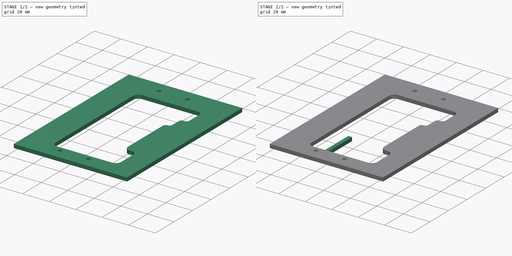
[diagram: build sequence overview — one tinted view per stage of 2, left to right]
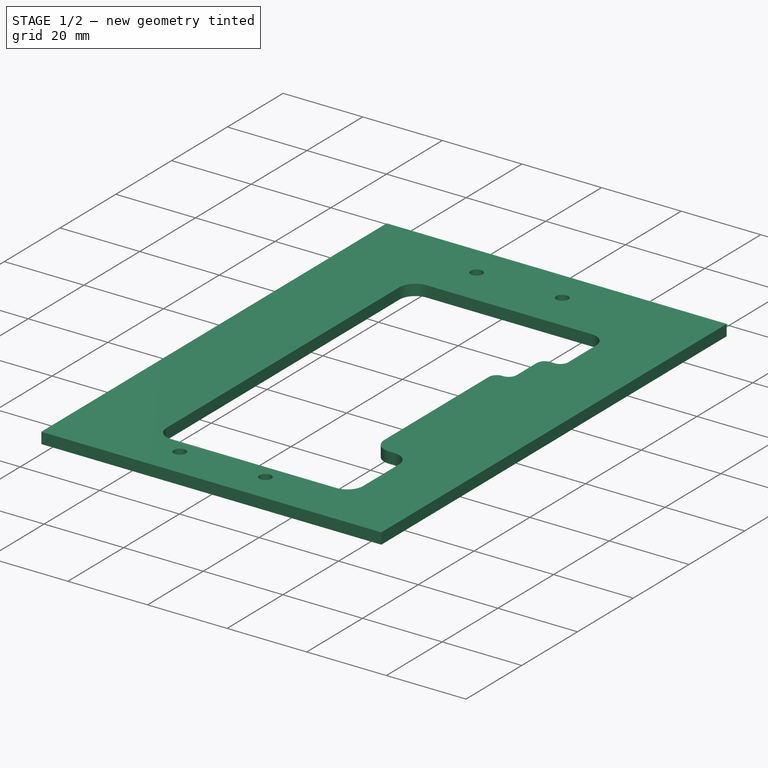
[diagram: stage 1 of 2 — iso view after this stage's code; geometry added in this stage tinted green]
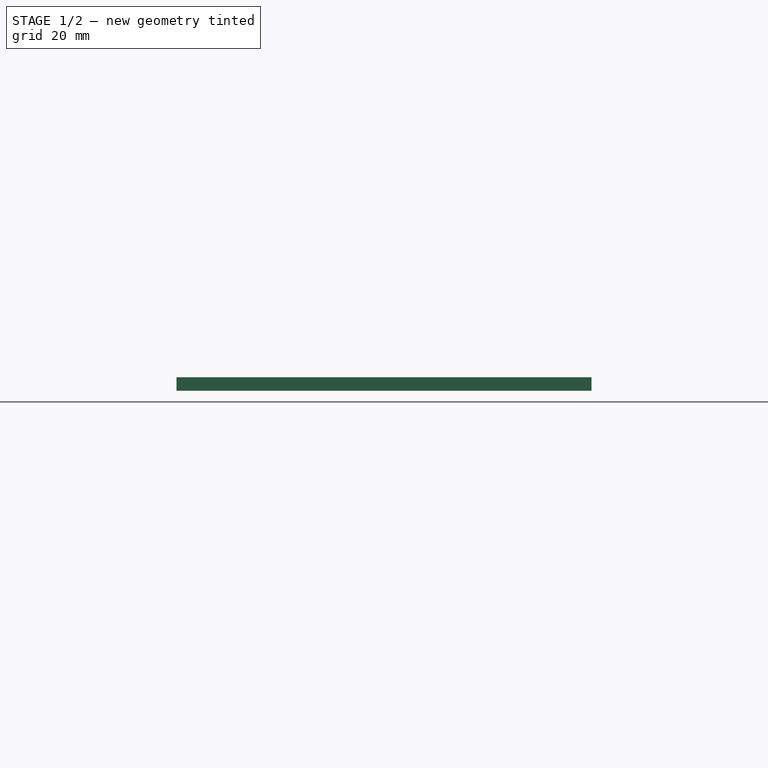
[diagram: stage 1 of 2 — front view after this stage's code; geometry added in this stage tinted green]
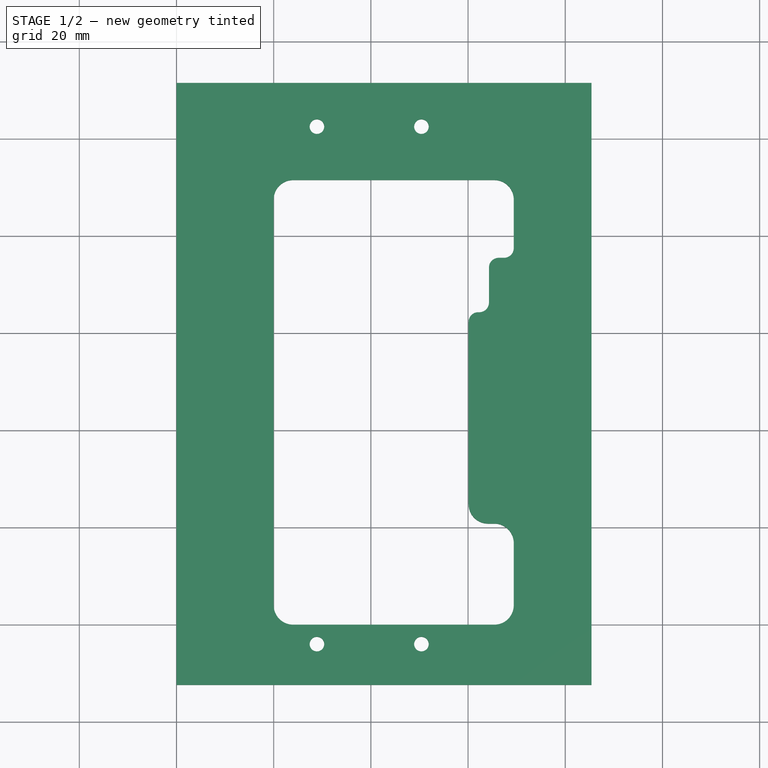
[diagram: stage 1 of 2 — top view after this stage's code; geometry added in this stage tinted green]
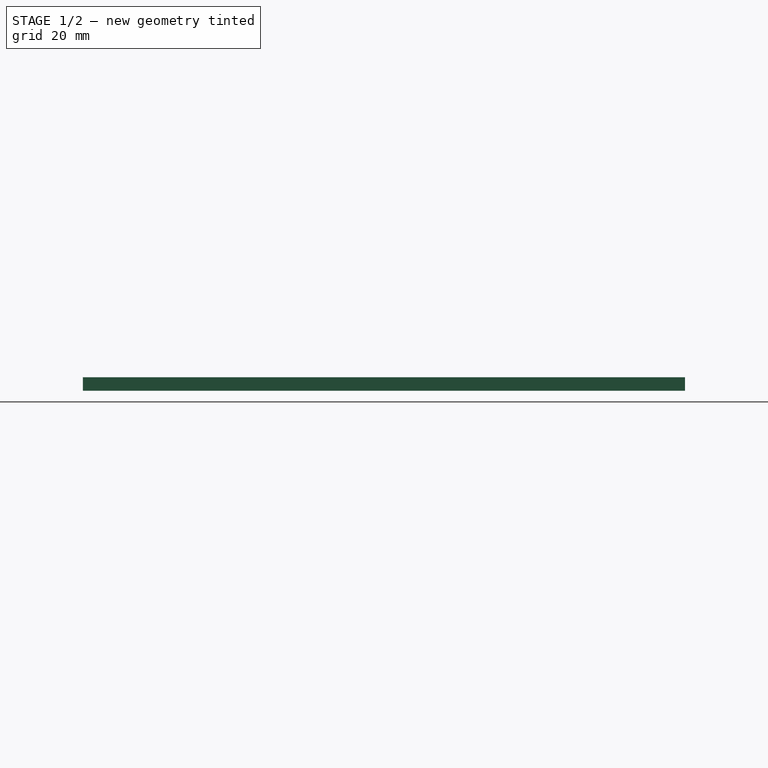
[diagram: stage 1 of 2 — right view after this stage's code; geometry added in this stage tinted green]
FCSTD DOCUMENT  (FreeCAD 0.21R33771 (Git))
Label: intermediate_boundary
License: All rights reserved
LicenseURL: http://en.wikipedia.org/wiki/All_rights_reserved
objects: Sketcher::SketchObject×2, PartDesign::Pad×2, PartDesign::Body×1
note: 7 computed .brp shape members not serialized (recipe doc carries the construction recipe); baked Part::Feature solids carry a one-line shape summary decoded from their .brp

FEATURE [Sketcher::SketchObject] Sketch
  FullyConstrained = true
  MapMode = 5
  Support = -> [XY_Plane]
  sketch-geometry (32):
    g0: LineSegment StartX=-20 StartY=111.5 StartZ=0 EndX=65.4 EndY=111.5 EndZ=0
    g1: LineSegment StartX=65.4 StartY=111.5 StartZ=0 EndX=65.4 EndY=-12.4 EndZ=0
    g2: LineSegment StartX=65.4 StartY=-12.4 StartZ=0 EndX=-20 EndY=-12.4 EndZ=0
    g3: LineSegment StartX=-20 StartY=-12.4 StartZ=0 EndX=-20 EndY=111.5 EndZ=0
    g4: LineSegment StartX=4 StartY=91.5 StartZ=0 EndX=45.4 EndY=91.5 EndZ=0
    g5: LineSegment StartX=45.4 StartY=0 StartZ=0 EndX=4 EndY=0 EndZ=0
    g6: LineSegment StartX=7.1445e-12 StartY=4 StartZ=0 EndX=7.1445e-12 EndY=87.5 EndZ=0
    g7: LineSegment StartX=42.1 StartY=64.3 StartZ=0 EndX=42.3 EndY=64.3 EndZ=0
    g8: LineSegment StartX=45.4 StartY=20.8 StartZ=0 EndX=44.1 EndY=20.8 EndZ=0
    g9: LineSegment StartX=40.1 StartY=24.8 StartZ=0 EndX=40.1 EndY=62.3 EndZ=0
    g10: LineSegment StartX=49.4 StartY=16.8 StartZ=0 EndX=49.4 EndY=4 EndZ=0
    g11: ArcOfCircle CenterX=4 CenterY=87.5 CenterZ=0 NormalX=0 NormalY=0 NormalZ=1 AngleXU=0 Radius=4 StartAngle=1.5708 EndAngle=3.14159
    g12: ArcOfCircle CenterX=4 CenterY=4 CenterZ=0 NormalX=0 NormalY=0 NormalZ=1 AngleXU=0 Radius=4 StartAngle=3.14159 EndAngle=4.71239
    g13: ArcOfCircle CenterX=45.4 CenterY=4 CenterZ=0 NormalX=0 NormalY=0 NormalZ=1 AngleXU=0 Radius=4 StartAngle=4.71239 EndAngle=6.28319
    g14: ArcOfCircle CenterX=45.4 CenterY=16.8 CenterZ=0 NormalX=0 NormalY=0 NormalZ=1 AngleXU=0 Radius=4 StartAngle=-9e-16 EndAngle=1.5708
    g15: ArcOfCircle CenterX=45.4 CenterY=87.5 CenterZ=0 NormalX=0 NormalY=0 NormalZ=1 AngleXU=0 Radius=4 StartAngle=9e-16 EndAngle=1.5708
    g16: ArcOfCircle CenterX=42.3 CenterY=66.3 CenterZ=0 NormalX=0 NormalY=0 NormalZ=1 AngleXU=0 Radius=2 StartAngle=4.71239 EndAngle=6.28319
    g17: ArcOfCircle CenterX=42.1 CenterY=62.3 CenterZ=0 NormalX=0 NormalY=0 NormalZ=1 AngleXU=0 Radius=2 StartAngle=1.5708 EndAngle=3.14159
    g18: ArcOfCircle CenterX=44.1 CenterY=24.8 CenterZ=0 NormalX=0 NormalY=0 NormalZ=1 AngleXU=0 Radius=4 StartAngle=3.14159 EndAngle=4.71239
    g19: LineSegment StartX=49.4 StartY=87.5 StartZ=0 EndX=49.4 EndY=77.5 EndZ=0
    g20: LineSegment StartX=47.4 StartY=75.5 StartZ=0 EndX=46.3 EndY=75.5 EndZ=0
    g21: LineSegment StartX=44.3 StartY=66.3 StartZ=0 EndX=44.3 EndY=73.5 EndZ=0
    g22: ArcOfCircle CenterX=46.3 CenterY=73.5 CenterZ=0 NormalX=0 NormalY=0 NormalZ=1 AngleXU=0 Radius=2 StartAngle=1.5708 EndAngle=3.14159
    g23: ArcOfCircle CenterX=47.4 CenterY=77.5 CenterZ=0 NormalX=0 NormalY=0 NormalZ=1 AngleXU=0 Radius=2 StartAngle=4.71239 EndAngle=6.28319
    g24: LineSegment StartX=8.9 StartY=102.5 StartZ=0 EndX=30.4 EndY=102.5 EndZ=0
    g25: LineSegment StartX=30.4 StartY=102.5 StartZ=0 EndX=30.4 EndY=-4 EndZ=0
    g26: LineSegment StartX=30.4 StartY=-4 StartZ=0 EndX=8.9 EndY=-4 EndZ=0
    g27: LineSegment StartX=8.9 StartY=-4 StartZ=0 EndX=8.9 EndY=102.5 EndZ=0
    g28: Circle CenterX=8.9 CenterY=-4 CenterZ=0 NormalX=0 NormalY=0 NormalZ=1 AngleXU=0 Radius=1.5
    g29: Circle CenterX=30.4 CenterY=-4 CenterZ=0 NormalX=0 NormalY=0 NormalZ=1 AngleXU=0 Radius=1.5
    g30: Circle CenterX=8.9 CenterY=102.5 CenterZ=0 NormalX=0 NormalY=0 NormalZ=1 AngleXU=0 Radius=1.5
    g31: Circle CenterX=30.4 CenterY=102.5 CenterZ=0 NormalX=0 NormalY=0 NormalZ=1 AngleXU=0 Radius=1.5
  constraints (82):
    c: Coincident(g0,g1)
    c: Coincident(g1,g2)
    c: Coincident(g2,g3)
    c: Coincident(g3,g0)
    c: Horizontal(g0)
    c: Horizontal(g2)
    c: Vertical(g1)
    c: Vertical(g3)
    c: Horizontal(g4)
    c: Horizontal(g5)
    c: Vertical(g6)
    c: Horizontal(g7)
    c: Horizontal(g8)
    c: Vertical(g9)
    c: Tangent(g4,g11) = 1.5708
    c: Tangent(g6,g11) = 1.5708
    c: Tangent(g5,g12) = 1.5708
    c: Tangent(g6,g12) = 1.5708
    c: Tangent(g5,g13) = 1.5708
    c: Tangent(g10,g13) = 1.5708
    c: Tangent(g8,g14) = -1.5708
    c: Tangent(g10,g14) = 1.5708
    c: Tangent(g4,g15) = 1.5708
    c: Tangent(g7,g16) = -1.5708
    c: Tangent(g7,g17) = 1.5708
    c: Tangent(g9,g17) = 1.5708
    c: Tangent(g8,g18) = 1.5708
    c: Tangent(g9,g18) = 1.5708
    c: Equal(g11,g12)
    c: Equal(g12,g15)
    c: Equal(g15,g13)
    c: Equal(g13,g14)
    c: Equal(g14,g18)
    c: Radius(g12) = 4
    c: DistanceY(g5,g4) = 91.5
    c: Vertical(g10)
    c: Vertical(g19)
    c: Horizontal(g20)
    c: Vertical(g21)
    c: Tangent(g20,g22) = -1.5708
    c: Tangent(g21,g22) = 1.5708
    c: Tangent(g19,g23) = 1.5708
    c: Tangent(g20,g23) = 1.5708
    c: Equal(g16,g22)
    c: Equal(g22,g23)
    c: Tangent(g21,g16) = -1.5708
    c: Equal(g17,g16)
    c: Radius(g17) = 2
    c: DistanceX(g6,g10) = 49.4
    c: PointOnObject(g15,g10)
    c: DistanceY(g5,g8) = 20.8
    c: DistanceY(g8,g7) = 43.5
    c: DistanceY(g20,g4) = 16
    c: DistanceX(g6,g9) = 40.1
    c: DistanceX(g6,g16) = 44.3
    c: PointOnObject(g-1,g6)
    c: PointOnObject(g-1,g5)
    c: Tangent(g19,g15) = 1.5708
    c: DistanceY(g4,g0) = 20
    c: DistanceY(g2,g5) = 12.4
    c: DistanceX(g0,g6) = 20
    c: DistanceX(g5,g1) = 20
    c: Coincident(g24,g25)
    c: Coincident(g25,g26)
    c: Coincident(g26,g27)
    c: Coincident(g27,g24)
    c: Horizontal(g24)
    c: Horizontal(g26)
    c: Vertical(g25)
    c: Vertical(g27)
    c: Coincident(g28,g26)
    c: Coincident(g29,g25)
    c: Coincident(g30,g24)
    c: Coincident(g31,g24)
    c: Equal(g30,g28)
    c: Equal(g28,g29)
    c: DistanceX(g28,g29) = 21.5
    c: Diameter(g28) = 3
    c: Equal(g30,g31)
    c: DistanceY(g27,g27) = 106.5
    c: DistanceY(g28,g5) = 4
    c: DistanceX(g29,g10) = 19
FEATURE [PartDesign::Pad] Pad
  Direction = (0,0,1)
  Length = 2.8
  Length2 = 10
  Profile = -> Sketch
  ReferenceAxis = -> Sketch [N_Axis]
  Type = 0
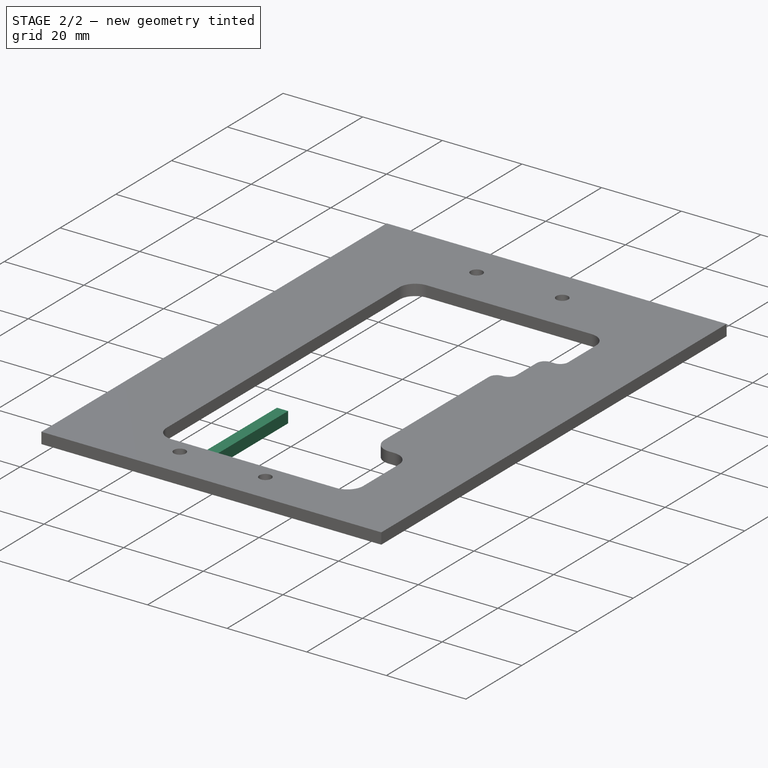
[diagram: stage 2 of 2 — iso view after this stage's code; geometry added in this stage tinted green]
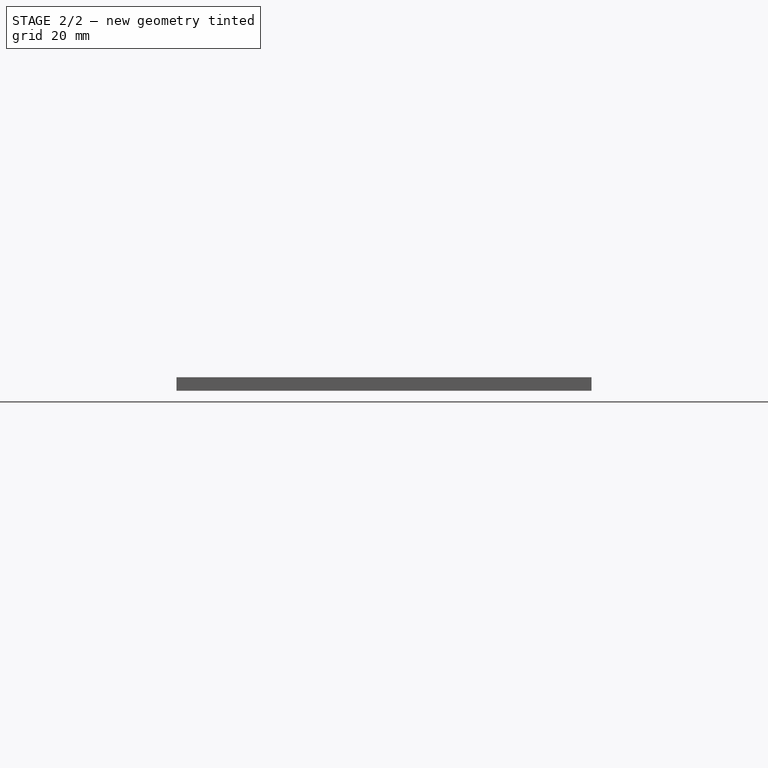
[diagram: stage 2 of 2 — front view after this stage's code; geometry added in this stage tinted green]
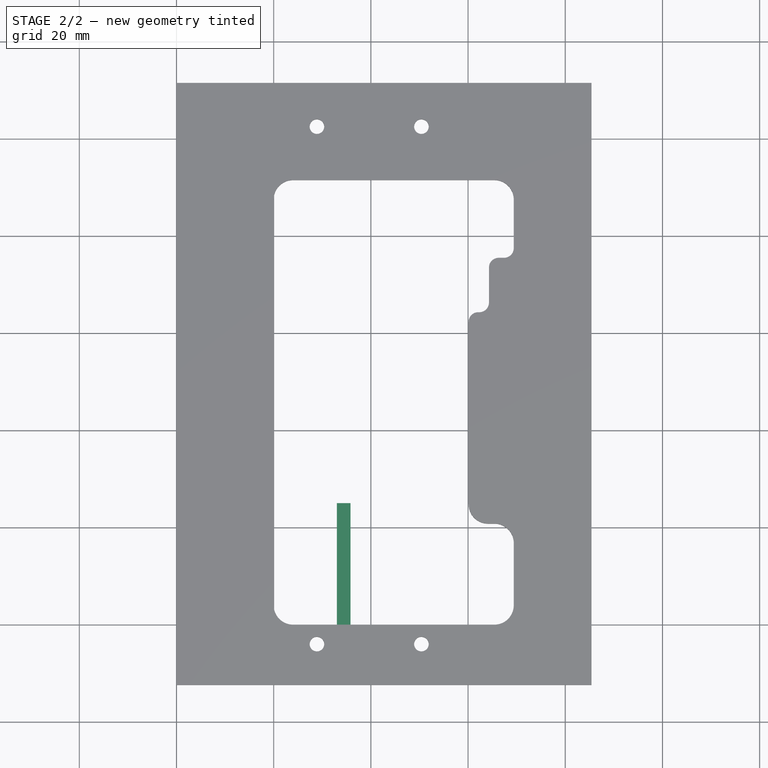
[diagram: stage 2 of 2 — top view after this stage's code; geometry added in this stage tinted green]
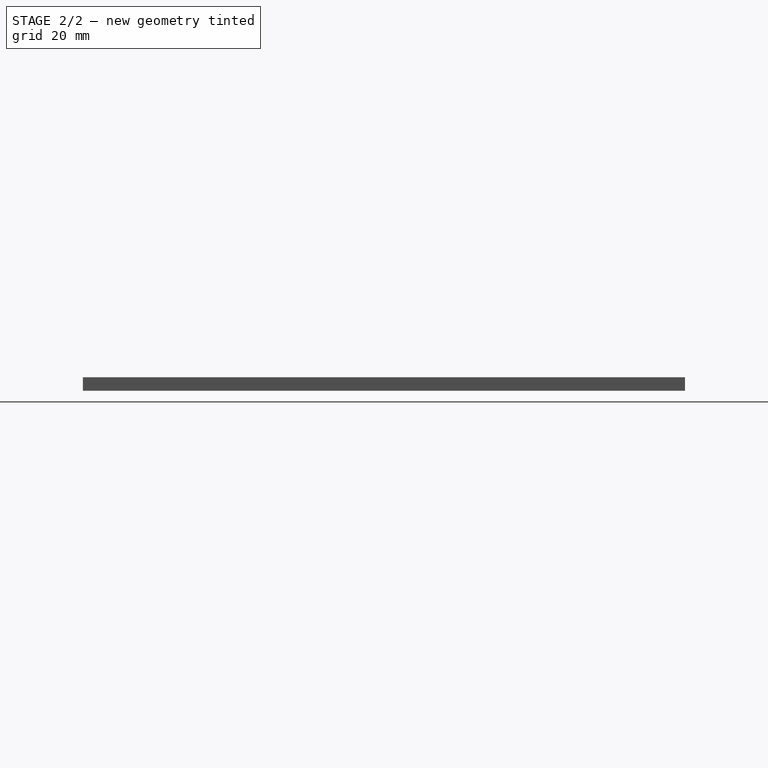
[diagram: stage 2 of 2 — right view after this stage's code; geometry added in this stage tinted green]
FEATURE [Sketcher::SketchObject] Sketch001
  ExternalGeometry = -> [Pad]
  FullyConstrained = true
  MapMode = 2
  sketch-geometry (4):
    g0: LineSegment StartX=13 StartY=25 StartZ=0 EndX=15.8 EndY=25 EndZ=0
    g1: LineSegment StartX=15.8 StartY=25 StartZ=0 EndX=15.8 EndY=0 EndZ=0
    g2: LineSegment StartX=15.8 StartY=0 StartZ=0 EndX=13 EndY=0 EndZ=0
    g3: LineSegment StartX=13 StartY=0 StartZ=0 EndX=13 EndY=25 EndZ=0
  constraints (12):
    c: Coincident(g0,g1)
    c: Coincident(g1,g2)
    c: Coincident(g2,g3)
    c: Coincident(g3,g0)
    c: Horizontal(g0)
    c: Horizontal(g2)
    c: Vertical(g1)
    c: Vertical(g3)
    c: DistanceX(g0,g0) = 2.8
    c: DistanceX(g-3,g0) = 6.9
    c: PointOnObject(g1,g-4)
    c: DistanceY(g1,g1) = 25
FEATURE [PartDesign::Pad] Pad001
  BaseFeature = -> Pad
  Direction = (0,0,1)
  Length = 10
  Length2 = 10
  Profile = -> Sketch001
  ReferenceAxis = -> Sketch001 [N_Axis]
  Type = 3
  UpToFace = -> Pad [Face30]
FEATURE [PartDesign::Body] Body
  Group = -> [Sketch,Pad,Sketch001,Pad001]
  Origin = -> Origin
  Tip = -> Pad001
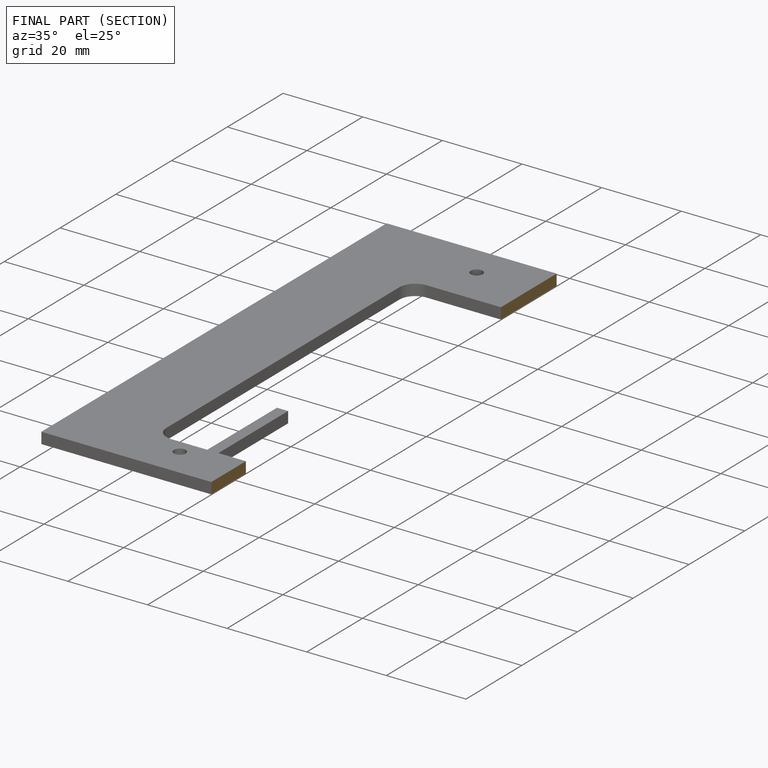
[diagram: finished part — half-section view (interior)]
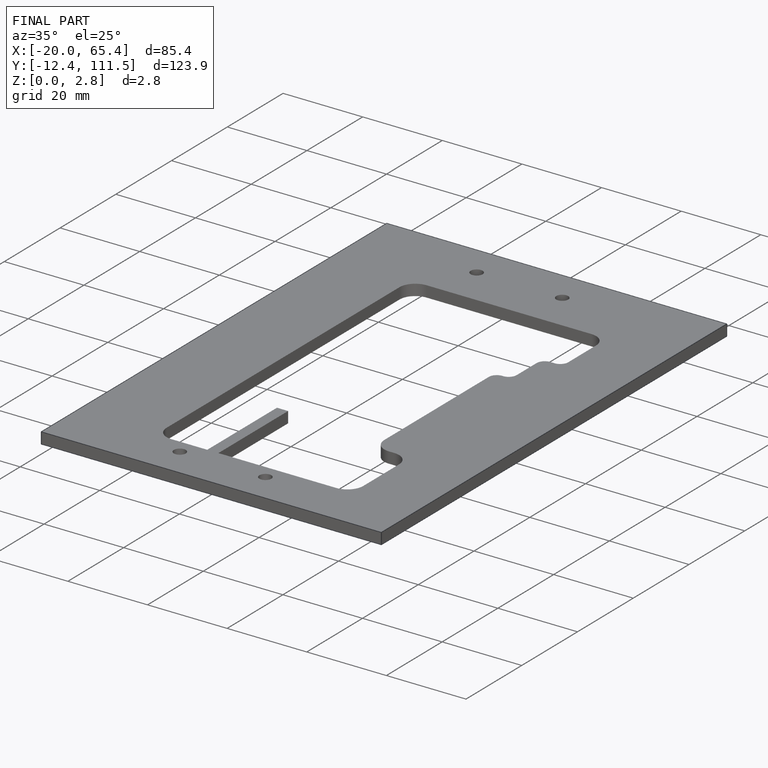
[diagram: finished part — iso view with bounding-box wireframe]
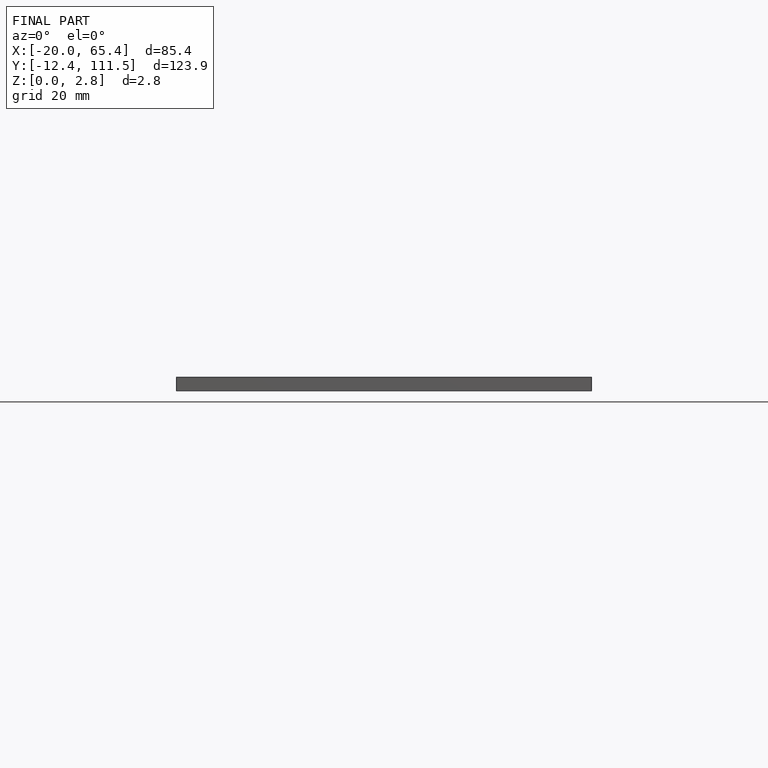
[diagram: finished part — front view with bounding-box wireframe]
